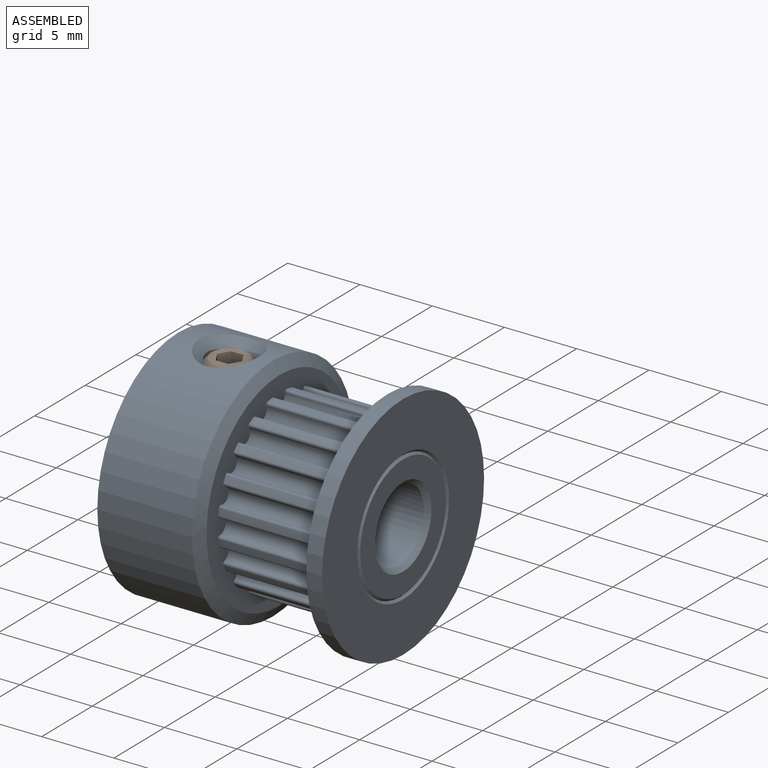
[diagram: assembled view]
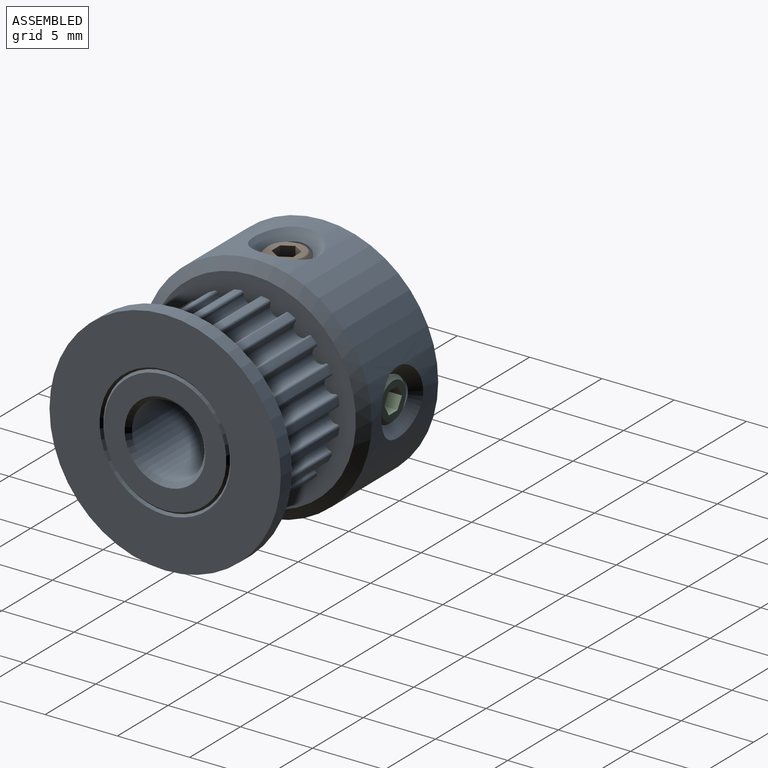
[diagram: assembled view, second angle]
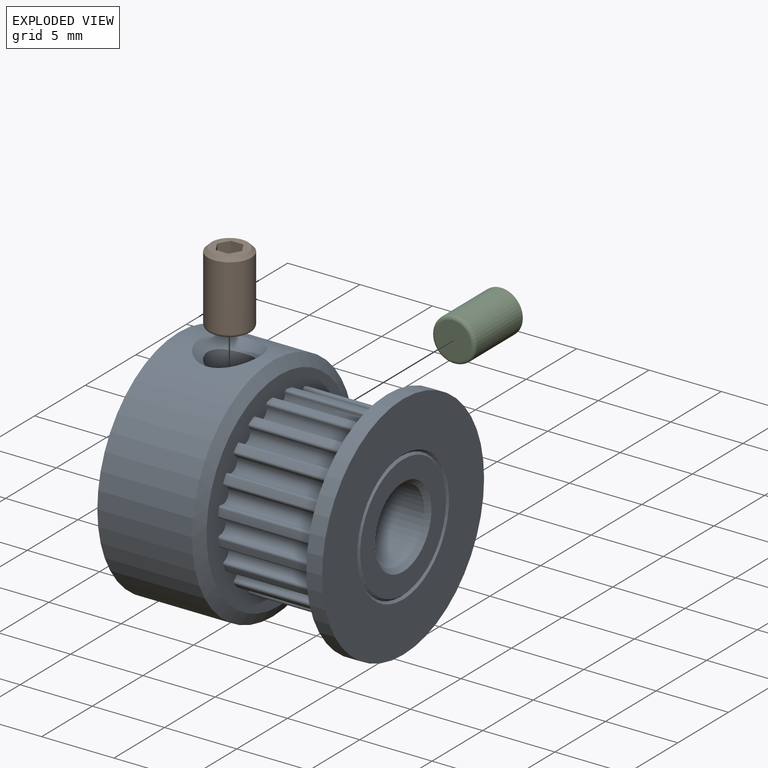
[diagram: exploded view]
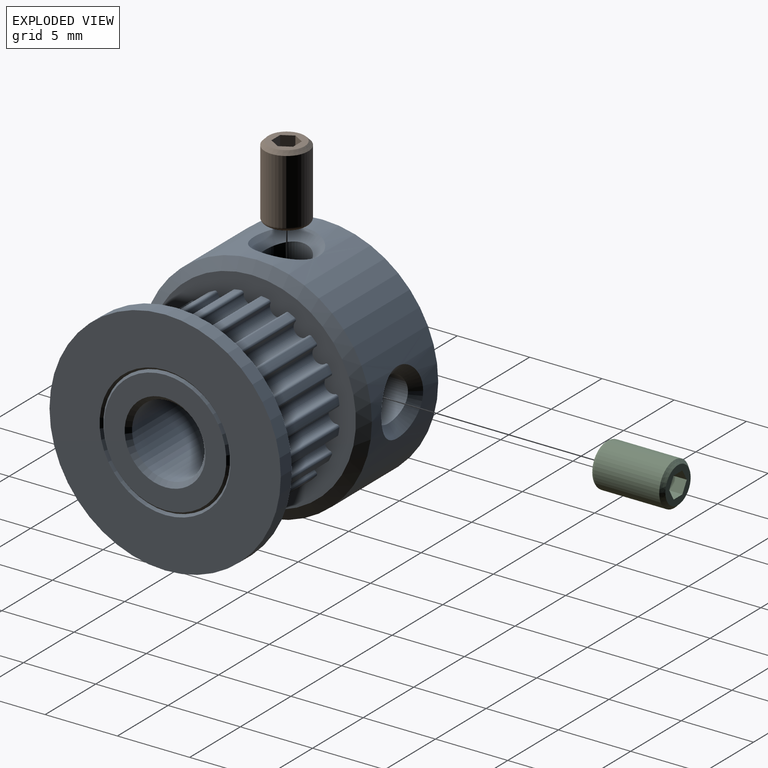
[diagram: exploded view, second angle]
ASSEMBLY  parts=3 mates=2
PART A: 101 faces, bbox 16x16x16 mm
  f0: plane 16x16mm, normal (1,0,0), area 136.4mm2, adj f1,f2
  f1: cylinder r=8mm len=16mm, axis (-1,0,0), area 55.3mm2, adj f0,f3
  f2: cone r=4.38mm half-angle=45deg, axis (1,0,0), area 6mm2, adj f0,f4
  f3: cone r=7.21mm half-angle=60.2deg, axis (1,0,0), area 43.3mm2, adj f1,f5
  f4: cone r=4.23mm half-angle=45deg, axis (-1,0,0), area 5.8mm2, adj f2,f6
  f5: plane 14.43x14.43mm, normal (-1,0,0), area 61.1mm2, adj f3,f7,f8,f9,f10,f11,f12,f13
  f6: plane 8.46x8.46mm, normal (1,0,0), area 31.6mm2, adj f4,f87
  f7: cylinder r=0.55mm len=7mm, axis (-1,0,0), area 12.5mm2, adj f5,f8,f86,f90
  f8: cylinder r=0.16mm len=7mm, axis (-1,0,0), area 2mm2, adj f5,f7,f9,f90
  f9: cylinder r=6.11mm len=7mm, axis (-1,0,0), area 3.2mm2, adj f5,f8,f10,f90
  f10: cylinder r=0.16mm len=7mm, axis (1,0,0), area 2mm2, adj f5,f9,f11,f90
  f11: cylinder r=0.55mm len=7mm, axis (-1,0,0), area 12.5mm2, adj f5,f10,f12,f90
  f12: cylinder r=0.16mm len=7mm, axis (-1,0,0), area 2mm2, adj f5,f11,f13,f90
  f13: cylinder r=6.11mm len=7mm, axis (-1,0,0), area 3.2mm2, adj f5,f12,f14,f90
  f14: cylinder r=0.16mm len=7mm, axis (1,0,0), area 2mm2, adj f5,f13,f15,f90
  f15: cylinder r=0.55mm len=7mm, axis (-1,0,0), area 12.5mm2, adj f5,f14,f16,f90
  f16: cylinder r=0.16mm len=7mm, axis (-1,0,0), area 2mm2, adj f5,f15,f17,f90
  f17: cylinder r=6.11mm len=7mm, axis (-1,0,0), area 3.2mm2, adj f5,f16,f18,f90
  f18: cylinder r=0.16mm len=7mm, axis (1,0,0), area 2mm2, adj f5,f17,f19,f90
  f19: cylinder r=0.55mm len=7mm, axis (-1,0,0), area 12.5mm2, adj f5,f18,f20,f90
  f20: cylinder r=0.16mm len=7mm, axis (-1,0,0), area 2mm2, adj f5,f19,f21,f90
  f21: cylinder r=6.11mm len=7mm, axis (-1,0,0), area 3.2mm2, adj f5,f20,f22,f90
  f22: cylinder r=0.16mm len=7mm, axis (1,0,0), area 2mm2, adj f5,f21,f23,f90
  f23: cylinder r=0.55mm len=7mm, axis (-1,0,0), area 12.5mm2, adj f5,f22,f24,f90
  f24: cylinder r=0.16mm len=7mm, axis (-1,0,0), area 2mm2, adj f5,f23,f25,f90
  f25: cylinder r=6.11mm len=7mm, axis (-1,0,0), area 3.2mm2, adj f5,f24,f26,f90
  f26: cylinder r=0.16mm len=7mm, axis (1,0,0), area 2mm2, adj f5,f25,f27,f90
  f27: cylinder r=0.55mm len=7mm, axis (-1,0,0), area 12.5mm2, adj f5,f26,f28,f90
  f28: cylinder r=0.16mm len=7mm, axis (-1,0,0), area 2mm2, adj f5,f27,f29,f90
  f29: cylinder r=6.11mm len=7mm, axis (-1,0,0), area 3.2mm2, adj f5,f28,f30,f90
  f30: cylinder r=0.16mm len=7mm, axis (1,0,0), area 2mm2, adj f5,f29,f31,f90
  f31: cylinder r=0.55mm len=7mm, axis (-1,0,0), area 12.5mm2, adj f5,f30,f32,f90
  f32: cylinder r=0.16mm len=7mm, axis (-1,0,0), area 2mm2, adj f5,f31,f33,f90
  f33: cylinder r=6.11mm len=7mm, axis (-1,0,0), area 3.2mm2, adj f5,f32,f34,f90
  f34: cylinder r=0.16mm len=7mm, axis (1,0,0), area 2mm2, adj f5,f33,f35,f90
  f35: cylinder r=0.55mm len=7mm, axis (-1,0,0), area 12.5mm2, adj f5,f34,f36,f90
  f36: cylinder r=0.16mm len=7mm, axis (-1,0,0), area 2mm2, adj f5,f35,f37,f90
  f37: cylinder r=6.11mm len=7mm, axis (-1,0,0), area 3.2mm2, adj f5,f36,f38,f90
  f38: cylinder r=0.16mm len=7mm, axis (1,0,0), area 2mm2, adj f5,f37,f39,f90
  f39: cylinder r=0.55mm len=7mm, axis (-1,0,0), area 12.5mm2, adj f5,f38,f40,f90
  f40: cylinder r=0.16mm len=7mm, axis (-1,0,0), area 2mm2, adj f5,f39,f41,f90
  f41: cylinder r=6.11mm len=7mm, axis (-1,0,0), area 3.2mm2, adj f5,f40,f42,f90
  f42: cylinder r=0.16mm len=7mm, axis (1,0,0), area 2mm2, adj f5,f41,f43,f90
  f43: cylinder r=0.55mm len=7mm, axis (-1,0,0), area 12.5mm2, adj f5,f42,f44,f90
  f44: cylinder r=0.16mm len=7mm, axis (-1,0,0), area 2mm2, adj f5,f43,f45,f90
  f45: cylinder r=6.11mm len=7mm, axis (-1,0,0), area 3.2mm2, adj f5,f44,f46,f90
  f46: cylinder r=0.16mm len=7mm, axis (1,0,0), area 2mm2, adj f5,f45,f47,f90
  f47: cylinder r=0.55mm len=7mm, axis (-1,0,0), area 12.5mm2, adj f5,f46,f48,f90
  f48: cylinder r=0.16mm len=7mm, axis (-1,0,0), area 2mm2, adj f5,f47,f49,f90
  f49: cylinder r=6.11mm len=7mm, axis (-1,0,0), area 3.2mm2, adj f5,f48,f50,f90
  f50: cylinder r=0.16mm len=7mm, axis (1,0,0), area 2mm2, adj f5,f49,f51,f90
  f51: cylinder r=0.55mm len=7mm, axis (-1,0,0), area 12.5mm2, adj f5,f50,f52,f90
  f52: cylinder r=0.16mm len=7mm, axis (-1,0,0), area 2mm2, adj f5,f51,f53,f90
  f53: cylinder r=6.11mm len=7mm, axis (-1,0,0), area 3.2mm2, adj f5,f52,f54,f90
  f54: cylinder r=0.16mm len=7mm, axis (1,0,0), area 2mm2, adj f5,f53,f55,f90
  f55: cylinder r=0.55mm len=7mm, axis (-1,0,0), area 12.5mm2, adj f5,f54,f56,f90
  f56: cylinder r=0.16mm len=7mm, axis (-1,0,0), area 2mm2, adj f5,f55,f57,f90
  f57: cylinder r=6.11mm len=7mm, axis (-1,0,0), area 3.2mm2, adj f5,f56,f58,f90
  f58: cylinder r=0.16mm len=7mm, axis (1,0,0), area 2mm2, adj f5,f57,f59,f90
  f59: cylinder r=0.55mm len=7mm, axis (-1,0,0), area 12.5mm2, adj f5,f58,f60,f90
  f60: cylinder r=0.16mm len=7mm, axis (-1,0,0), area 2mm2, adj f5,f59,f61,f90
  f61: cylinder r=6.11mm len=7mm, axis (-1,0,0), area 3.2mm2, adj f5,f60,f62,f90
  f62: cylinder r=0.16mm len=7mm, axis (1,0,0), area 2mm2, adj f5,f61,f63,f90
  f63: cylinder r=0.55mm len=7mm, axis (-1,0,0), area 12.5mm2, adj f5,f62,f64,f90
  f64: cylinder r=0.16mm len=7mm, axis (-1,0,0), area 2mm2, adj f5,f63,f65,f90
  f65: cylinder r=6.11mm len=7mm, axis (-1,0,0), area 3.2mm2, adj f5,f64,f66,f90
  f66: cylinder r=0.16mm len=7mm, axis (1,0,0), area 2mm2, adj f5,f65,f67,f90
  f67: cylinder r=0.55mm len=7mm, axis (-1,0,0), area 12.5mm2, adj f5,f66,f68,f90
  f68: cylinder r=0.16mm len=7mm, axis (-1,0,0), area 2mm2, adj f5,f67,f69,f90
  f69: cylinder r=6.11mm len=7mm, axis (-1,0,0), area 3.2mm2, adj f5,f68,f70,f90
  f70: cylinder r=0.16mm len=7mm, axis (1,0,0), area 2mm2, adj f5,f69,f71,f90
  f71: cylinder r=0.55mm len=7mm, axis (-1,0,0), area 12.5mm2, adj f5,f70,f72,f90
  f72: cylinder r=0.16mm len=7mm, axis (-1,0,0), area 2mm2, adj f5,f71,f73,f90
  f73: cylinder r=6.11mm len=7mm, axis (-1,0,0), area 3.2mm2, adj f5,f72,f74,f90
  f74: cylinder r=0.16mm len=7mm, axis (1,0,0), area 2mm2, adj f5,f73,f75,f90
  f75: cylinder r=0.55mm len=7mm, axis (-1,0,0), area 12.5mm2, adj f5,f74,f76,f90
  f76: cylinder r=0.16mm len=7mm, axis (-1,0,0), area 2mm2, adj f5,f75,f77,f90
  f77: cylinder r=6.11mm len=7mm, axis (-1,0,0), area 3.2mm2, adj f5,f76,f78,f90
  f78: cylinder r=0.16mm len=7mm, axis (1,0,0), area 2mm2, adj f5,f77,f79,f90
  f79: cylinder r=0.55mm len=7mm, axis (-1,0,0), area 12.5mm2, adj f5,f78,f80,f90
  f80: cylinder r=0.16mm len=7mm, axis (-1,0,0), area 2mm2, adj f5,f79,f81,f90
  f81: cylinder r=6.11mm len=7mm, axis (-1,0,0), area 3.2mm2, adj f5,f80,f82,f90
  f82: cylinder r=0.16mm len=7mm, axis (1,0,0), area 2mm2, adj f5,f81,f83,f90
  f83: cylinder r=0.55mm len=7mm, axis (-1,0,0), area 12.5mm2, adj f5,f82,f84,f90
  f84: cylinder r=0.16mm len=7mm, axis (-1,0,0), area 2mm2, adj f5,f83,f85,f90
  f85: cylinder r=6.11mm len=7mm, axis (-1,0,0), area 3.2mm2, adj f5,f84,f86,f90
  f86: cylinder r=0.16mm len=7mm, axis (1,0,0), area 2mm2, adj f5,f7,f85,f90
  f87: cone r=2.5mm half-angle=45deg, axis (1,0,0), area 7.1mm2, adj f6,f94
  f88: cone r=2.8mm half-angle=45deg, axis (-1,0,0), area 7.1mm2, adj f93,f94
  f89: cylinder r=1.5mm len=5.34mm, axis (0,0,-1), area 47.8mm2, adj f91,f92,f94
  f90: plane 14.43x14.43mm, normal (1,0,0), area 61.1mm2, adj f7,f8,f9,f10,f11,f12,f13,f14
  f91: bspline ~4.14x2.96mm, area 5.9mm2, adj f89,f92,f99
  f92: bspline ~4.03x2.25mm, area 4.8mm2, adj f89,f91,f99
  f93: plane 14.43x14.43mm, normal (-1,0,0), area 138.8mm2, adj f88,f96
  f94: cylinder r=2.5mm len=15.4mm, axis (1,0,0), area 227mm2, adj f87,f88,f89,f97
  f95: cone r=8mm half-angle=60.2deg, axis (-1,0,0), area 43.3mm2, adj f90,f99
  f96: cone r=7.21mm half-angle=60.2deg, axis (1,0,0), area 43.3mm2, adj f93,f99
  f97: cylinder r=1.5mm len=5.34mm, axis (0,-1,0), area 47.9mm2, adj f94,f98,f100
  f98: bspline ~4.14x2.26mm, area 5.3mm2, adj f97,f99,f100
  f99: cylinder r=8mm len=16mm, axis (-1,0,0), area 299.7mm2, adj f91,f92,f95,f96,f98,f100
  f100: bspline ~4.14x2.26mm, area 5.3mm2, adj f97,f98,f99
PART B: 12 faces, bbox 5x3.2x3.2 mm
  f0: plane 2.5x2.5mm, normal (-1,0,0), area 3mm2, adj f3,f4,f5,f6,f7,f8,f11
  f1: cylinder r=1.5mm len=4.5mm, axis (-1,0,0), area 42.4mm2, adj f10,f11
  f2: plane 2.5x2.5mm, normal (1,0,0), area 4.9mm2, adj f10
  f3: plane 1.04x0.75mm, normal (0,-0.5,0.87), area 0.9mm2, adj f0,f4,f8,f9
  f4: plane 1.04x0.75mm, normal (0,0.5,0.87), area 0.9mm2, adj f0,f3,f5,f9
  f5: plane 1.04x0.87mm, normal (0,1,0), area 0.9mm2, adj f0,f4,f6,f9
  f6: plane 1.04x0.75mm, normal (0,0.5,-0.87), area 0.9mm2, adj f0,f5,f7,f9
  f7: plane 1.04x0.75mm, normal (0,-0.5,-0.87), area 0.9mm2, adj f0,f6,f8,f9
  f8: plane 1.04x0.87mm, normal (0,-1,0), area 0.9mm2, adj f0,f3,f7,f9
  f9: plane 1.73x1.5mm, normal (-1,0,0), area 1.9mm2, adj f3,f4,f5,f6,f7,f8
  f10: torus R=1.25mm, axis (-1,0,0), area 3.5mm2, adj f1,f2
  f11: cone r=1.25mm half-angle=45deg, axis (1,0,0), area 3.1mm2, adj f0,f1
PART C: same geometry as B
PLACE A at identity fixed
PLACE B rot(axis=(0.71,0,-0.71),180deg) t=(4,0,7.37)mm
PLACE C rot(axis=(0.58,-0.58,-0.58),120deg) t=(4,7.37,0)mm
MATE revolute B.f1 <-> A.f89  axis (0,0,1) through (4,0,7.37)mm
MATE revolute C.f1 <-> A.f97  axis (0,1,0) through (4,7.37,0)mm
